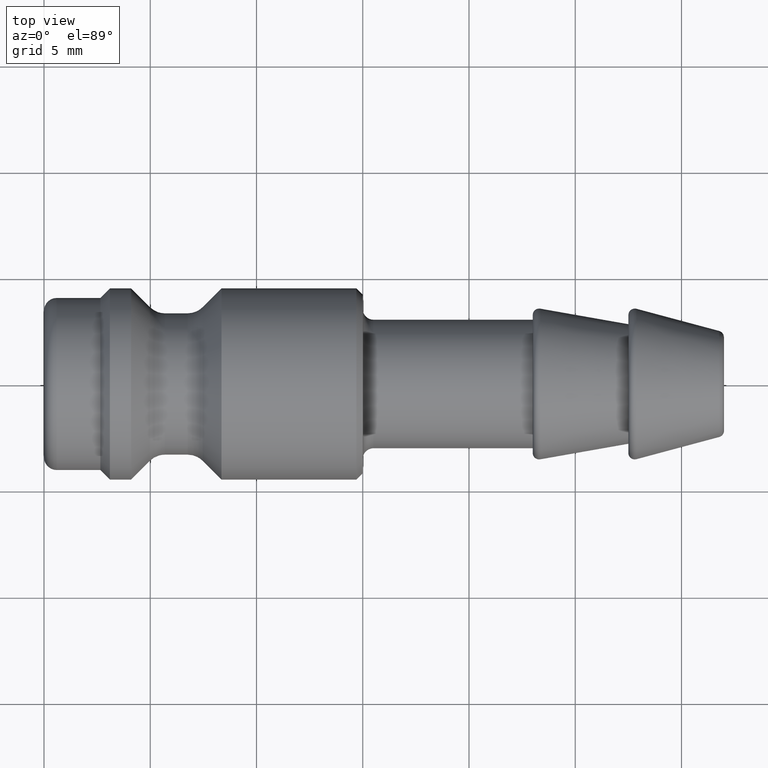
[diagram: clean part render]
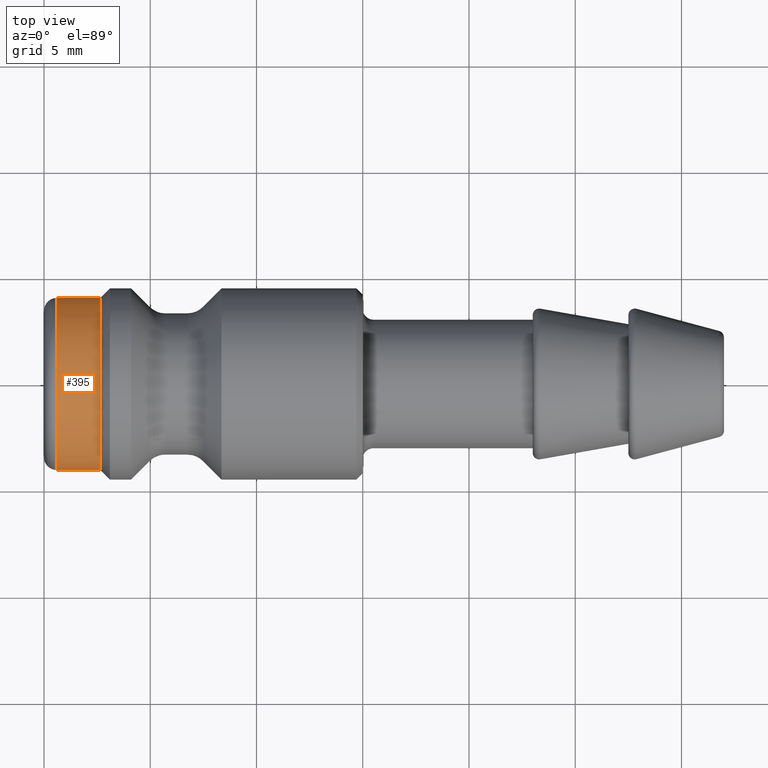
[diagram: same view with one face highlighted and labeled with its STEP entity id]
A machine part, top view. The second image highlights one B-rep face of the part: STEP entity #395.
In plain terms, the highlighted cylindrical surface (bore or boss wall) has radius 4.05 mm, axis along (-1, 0, 0).
Its self-contained STEP definition (entity closure, byte-faithful):
#361=CARTESIAN_POINT('',(2.650000000000001,-4.050000000000001,0.0));
#362=VERTEX_POINT('',#361);
#363=CARTESIAN_POINT('',(2.650000000000001,0.0,0.0));
#364=DIRECTION('',(-1.0,0.0,0.0));
#365=DIRECTION('',(0.0,-1.0,0.0));
#366=AXIS2_PLACEMENT_3D('',#363,#364,#365);
#367=CIRCLE('',#366,4.050000000000001);
#368=EDGE_CURVE('',#362,#362,#367,.T.);
#376=CARTESIAN_POINT('',(1.625000000000001,0.0,0.0));
#377=DIRECTION('',(-1.0,0.0,0.0));
#378=DIRECTION('',(0.0,-1.0,0.0));
#379=AXIS2_PLACEMENT_3D('',#376,#377,#378);
#380=CYLINDRICAL_SURFACE('',#379,4.050000000000001);
#381=CARTESIAN_POINT('',(0.600000000000001,-4.050000000000001,0.0));
#382=VERTEX_POINT('',#381);
#383=CARTESIAN_POINT('',(0.600000000000001,0.0,0.0));
#384=DIRECTION('',(-1.0,0.0,0.0));
#385=DIRECTION('',(0.0,-1.0,0.0));
#386=AXIS2_PLACEMENT_3D('',#383,#384,#385);
#387=CIRCLE('',#386,4.050000000000001);
#388=EDGE_CURVE('',#382,#382,#387,.T.);
#389=ORIENTED_EDGE('',*,*,#388,.F.);
#390=EDGE_LOOP('',(#389));
#391=FACE_OUTER_BOUND('',#390,.T.);
#392=ORIENTED_EDGE('',*,*,#368,.T.);
#393=EDGE_LOOP('',(#392));
#394=FACE_BOUND('',#393,.T.);
#395=ADVANCED_FACE('',(#391,#394),#380,.T.);